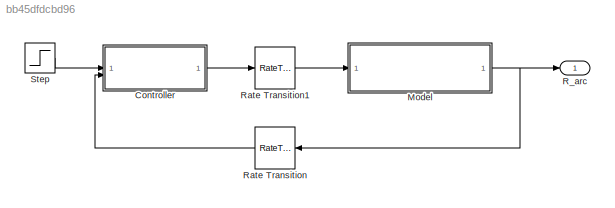
MODEL slx_bb45dfdcbd96
KIND model
CONFIG AbsTol = auto
CONFIG EnableMultiTasking = off
CONFIG FixedStep = Ts_local
CONFIG MaxStep = auto
CONFIG MinStep = auto
CONFIG RelTol = 1e-3
CONFIG SampleTimeConstraint = Unconstrained
CONFIG SolverName = ode14x
CONFIG StartTime = 0
CONFIG StopTime = 20
WORKSPACE source: mxarray member
WORKSPACE CtrlChoice: string (value not decoded)
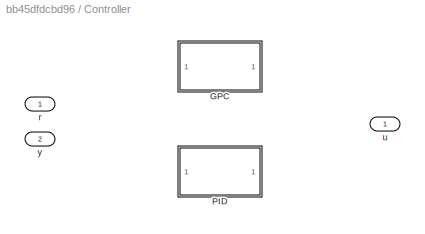
BLOCK [SubSystem] Controller
  Variant = on
BLOCK [ModelReference] Controller/GPC
  ModelNameDialog = GPC.slx
  ModelReferenceVersion = 1.137
  PortSchema = {"entries":[{"content":{"sides":[{"content":{"connectorIds":["In2","In1"]},"type":"ConnectorPlacement.EquallySpacedRectSide","uuid":"c107f1c2-3547-45d9-8105-1f531098cad9"},{"content":{"connectorIds":["Out1"],"side":"RIGHT"},"type":"ConnectorPlacement.EquallySpacedRectSide","uuid":"edcbd001-1fd9-492d-b847-8c21cda39726"},{"content":{"side":"TOP"},"type":"ConnectorPlacement.EquallySpacedRectSide","uu...<+228ch>
  VariantControl = CtrlChoice == "GPC"
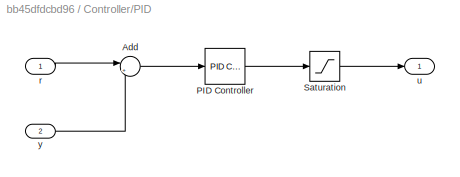
BLOCK [SubSystem] Controller/PID
  VariantControl = CtrlChoice == "PID"
BLOCK [Sum] Controller/PID/Add
  Inputs = |+-
BLOCK [Reference] Controller/PID/PID Controller  REF=slpidlib/PID Controller
  LibrarySourceBlock = simulink/Continuous/PID Controller
  SourceBlock = slpidlib/PID Controller
  SourceType = PID 1dof
BLOCK [Saturate] Controller/PID/Saturation
  LowerLimit = -1.08
  UpperLimit = 1.12
BLOCK [Inport] Controller/PID/r
  NameLocation = left
BLOCK [Outport] Controller/PID/u
  NameLocation = right
BLOCK [Inport] Controller/PID/y
  NameLocation = left
  Port = 2
BLOCK [Inport] Controller/r
  NameLocation = left
BLOCK [Outport] Controller/u
BLOCK [Inport] Controller/y
  NameLocation = left
  Port = 2
BLOCK [ModelReference] Model
  ModelNameDialog = EAF_single_phase.slx
  ModelReferenceVersion = 1.22
BLOCK [Outport] R_arc
BLOCK [RateTransition] Rate Transition
  NameLocation = top
  OutPortSampleTime = Ts_ctrl
BLOCK [RateTransition] Rate Transition1
  OutPortSampleTime = Ts_local
BLOCK [Step] Step
  After = 2e-3
  Before = 1.5e-3
  SampleTime = Ts_ctrl
  Time = 10
LINE Controller/PID/Add:1 -> Controller/PID/PID Controller:1
LINE Controller/PID/PID Controller:1 -> Controller/PID/Saturation:1
LINE Controller/PID/Saturation:1 -> Controller/PID/u:1
LINE Controller/PID/r:1 -> Controller/PID/Add:1
LINE Controller/PID/y:1 -> Controller/PID/Add:2
LINE Controller:1 -> Rate Transition1:1
NET Model:1 -> R_arc:1, Rate Transition:1
LINE Rate Transition1:1 -> Model:1
LINE Rate Transition:1 -> Controller:2
LINE Step:1 -> Controller:1
note: NET lines group one-source signal fan-out (src -> all destinations, sorted); 1:1 wires keep LINE
